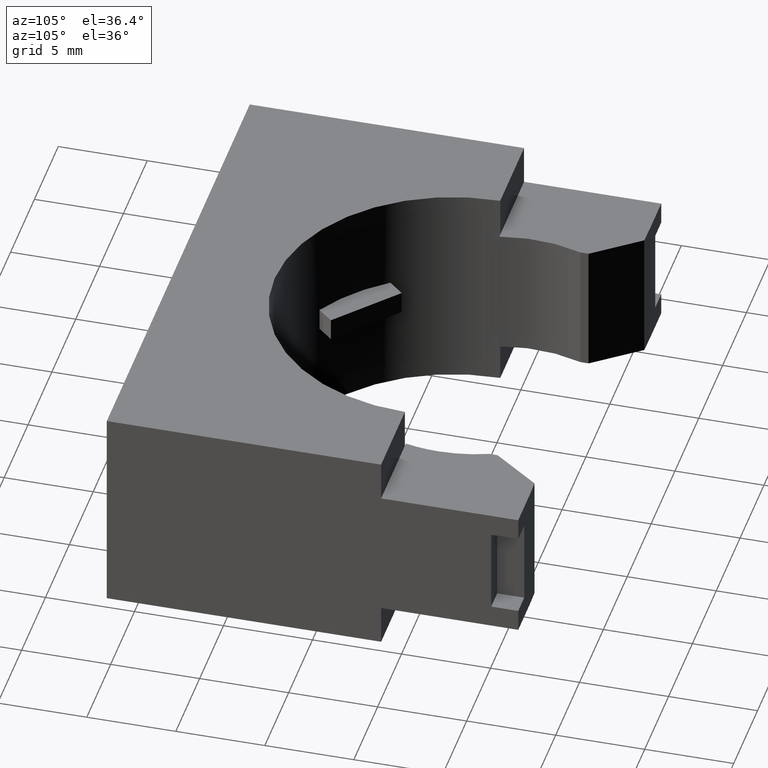
[diagram: clean part render]
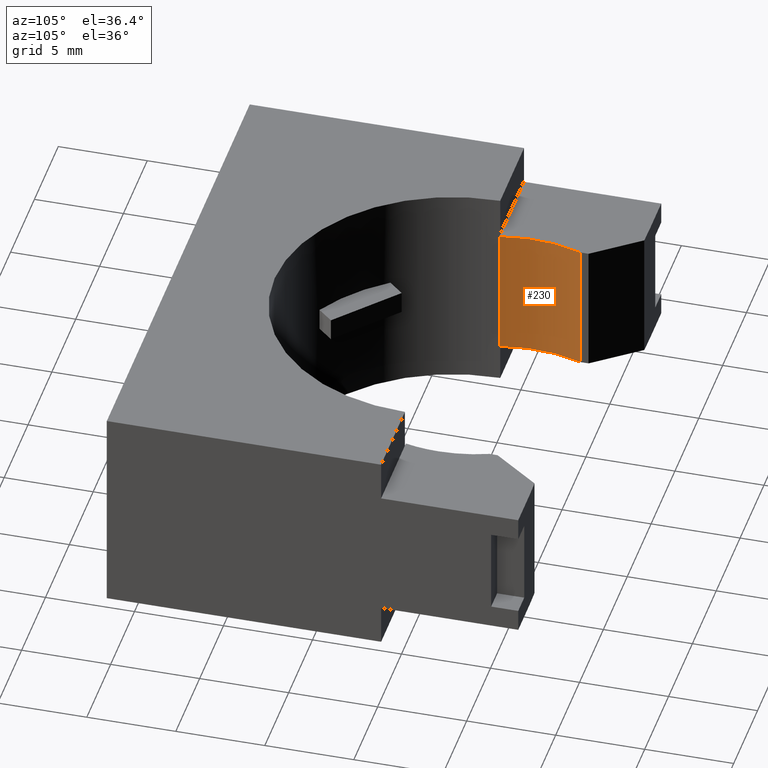
[diagram: same view with one face highlighted and labeled with its STEP entity id]
A machine part, auxiliary view. The second image highlights one B-rep face of the part: STEP entity #230.
In plain terms, the highlighted cylindrical surface (partial cylindrical patch) has radius 7.8661 mm, axis along (-0, -0, 1).
Its self-contained STEP definition (entity closure, byte-faithful):
#113 = VERTEX_POINT ( 'NONE', #1018 ) ;
#183 = ORIENTED_EDGE ( 'NONE', *, *, #228, .F. ) ;
#184 = ORIENTED_EDGE ( 'NONE', *, *, #370, .T. ) ;
#185 = ORIENTED_EDGE ( 'NONE', *, *, #269, .T. ) ;
#228 = EDGE_CURVE ( 'NONE', #371, #309, #892, .T. ) ;
#230 = ADVANCED_FACE ( 'NONE', ( #888 ), #887, .F. ) ;
#231 = EDGE_LOOP ( 'NONE', ( #183, #184, #185, #234 ) ) ;
#234 = ORIENTED_EDGE ( 'NONE', *, *, #329, .T. ) ;
#268 = VERTEX_POINT ( 'NONE', #1122 ) ;
#269 = EDGE_CURVE ( 'NONE', #113, #268, #1102, .T. ) ;
#309 = VERTEX_POINT ( 'NONE', #1069 ) ;
#329 = EDGE_CURVE ( 'NONE', #268, #309, #1381, .T. ) ;
#370 = EDGE_CURVE ( 'NONE', #371, #113, #1216, .T. ) ;
#371 = VERTEX_POINT ( 'NONE', #1368 ) ;
#883 = DIRECTION ( 'NONE',  ( 1.000000000000000000, 0.0000000000000000000, 0.0000000000000000000 ) ) ;
#884 = DIRECTION ( 'NONE',  ( -0.0000000000000000000, -0.0000000000000000000, 1.000000000000000000 ) ) ;
#885 = CARTESIAN_POINT ( 'NONE',  ( -0.08490476214538889000, 0.2262916571644378000, 0.0000000000000000000 ) ) ;
#886 = AXIS2_PLACEMENT_3D ( 'NONE', #885, #884, #883 ) ;
#887 = CYLINDRICAL_SURFACE ( 'NONE', #886, 0.3096874999999998400 ) ;
#888 = FACE_OUTER_BOUND ( 'NONE', #231, .T. ) ;
#889 = DIRECTION ( 'NONE',  ( -0.0000000000000000000, -0.0000000000000000000, 1.000000000000000000 ) ) ;
#890 = VECTOR ( 'NONE', #889, 39.37007874015748100 ) ;
#891 = CARTESIAN_POINT ( 'NONE',  ( -0.3854666666666664600, 0.1516666666666670600, 0.0000000000000000000 ) ) ;
#892 = LINE ( 'NONE', #891, #890 ) ;
#1018 = CARTESIAN_POINT ( 'NONE',  ( -0.3753125000000004900, 0.3338541666666669500, 0.08954999999999975500 ) ) ;
#1069 = CARTESIAN_POINT ( 'NONE',  ( -0.3854666666666664000, 0.1516666666666670000, 0.3804500000000002300 ) ) ;
#1100 = VECTOR ( 'NONE', #1109, 39.37007874015748100 ) ;
#1101 = CARTESIAN_POINT ( 'NONE',  ( -0.3753125000000004900, 0.3338541666666669500, 0.0000000000000000000 ) ) ;
#1102 = LINE ( 'NONE', #1101, #1100 ) ;
#1109 = DIRECTION ( 'NONE',  ( -0.0000000000000000000, -0.0000000000000000000, 1.000000000000000000 ) ) ;
#1122 = CARTESIAN_POINT ( 'NONE',  ( -0.3753125000000004900, 0.3338541666666669500, 0.3804500000000002900 ) ) ;
#1216 = CIRCLE ( 'NONE', #1372, 0.3096874999999998400 ) ;
#1368 = CARTESIAN_POINT ( 'NONE',  ( -0.3854666666666664000, 0.1516666666666670600, 0.08954999999999972700 ) ) ;
#1369 = DIRECTION ( 'NONE',  ( 0.0000000000000000000, -1.000000000000000000, -1.102663165959340000E-016 ) ) ;
#1370 = DIRECTION ( 'NONE',  ( -0.0000000000000000000, 1.125761535850658700E-016, -1.000000000000000000 ) ) ;
#1371 = CARTESIAN_POINT ( 'NONE',  ( -0.08490476214538889000, 0.2262916571644378000, 0.08954999999999972700 ) ) ;
#1372 = AXIS2_PLACEMENT_3D ( 'NONE', #1371, #1370, #1369 ) ;
#1377 = DIRECTION ( 'NONE',  ( 0.0000000000000000000, 1.000000000000000000, 2.205326331918679900E-016 ) ) ;
#1378 = DIRECTION ( 'NONE',  ( -0.0000000000000000000, -2.251523071701317000E-016, 1.000000000000000000 ) ) ;
#1379 = CARTESIAN_POINT ( 'NONE',  ( -0.08490476214538889000, 0.2262916571644378000, 0.3804500000000002300 ) ) ;
#1380 = AXIS2_PLACEMENT_3D ( 'NONE', #1379, #1378, #1377 ) ;
#1381 = CIRCLE ( 'NONE', #1380, 0.3096874999999998400 ) ;